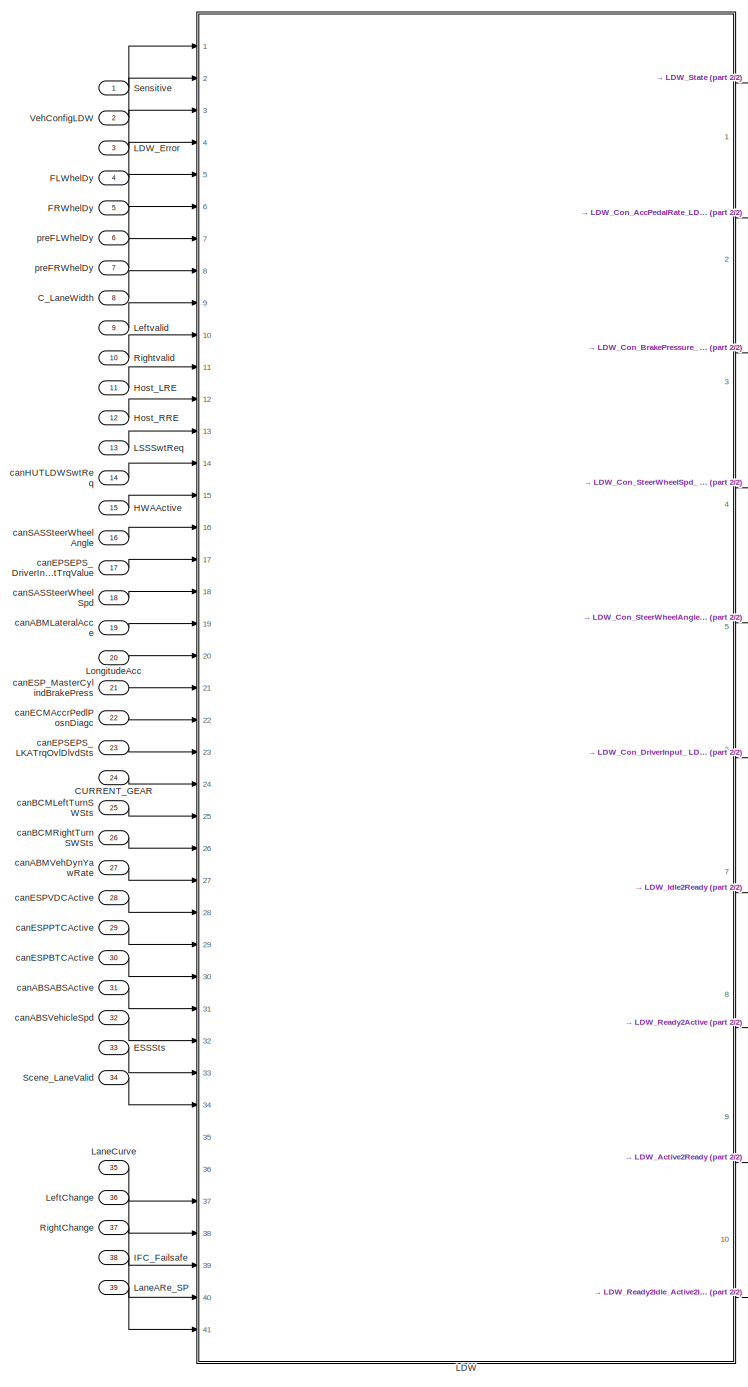
[diagram: root canvas - part 1/2, most of the canvas]
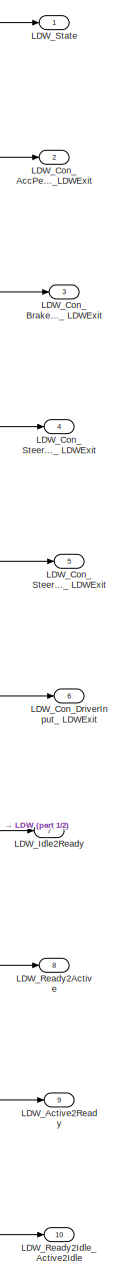
[diagram: root canvas - part 2/2, right side, full height]
MODEL slx_01c1db60d81b
KIND model
CONFIG AbsTol = auto
CONFIG EnableMultiTasking = off
CONFIG FixedStep = auto
CONFIG InitFcn = , if any(exist('dsmpb_private', 'file') ~= 0), dsmpb_private('dsmpb_mdlclblib', 'Init', bdroot); end,\n
CONFIG MaxStep = auto
CONFIG MinStep = auto
CONFIG PostLoadFcn = if any(exist('dsrtsu_mdlpostloadfcn', 'file') ~= 0), dsrtsu_mdlpostloadfcn('Execute', bdroot); end
CONFIG RelTol = 1e-3
CONFIG SampleTimeConstraint = Unconstrained
CONFIG SolverName = FixedStepAuto
CONFIG StartTime = 0.0
CONFIG StopTime = Inf
BLOCK [Inport] CURRENT_GEAR
  OutDataTypeStr = uint8
  Port = 24
BLOCK [Inport] C_LaneWidth
  OutDataTypeStr = single
  Port = 8
BLOCK [Inport] ESSSts
  OutDataTypeStr = uint8
  Port = 33
BLOCK [Inport] FLWhelDy
  OutDataTypeStr = single
  Port = 4
BLOCK [Inport] FRWhelDy
  OutDataTypeStr = single
  Port = 5
BLOCK [Inport] HWAActive
  OutDataTypeStr = boolean
  Port = 15
BLOCK [Inport] Host_LRE
  OutDataTypeStr = boolean
  Port = 11
BLOCK [Inport] Host_RRE
  OutDataTypeStr = boolean
  Port = 12
BLOCK [Inport] IFC_Failsafe
  OutDataTypeStr = double
  Port = 38
BLOCK [SubSystem] LDW
  Ports = [41, 10]
  ReferencedSubsystem = PvtSubSys_VSM_LDW
  RequestExecContextInheritance = off
BLOCK [Outport] LDW_Active2Ready
  Port = 9
BLOCK [Outport] LDW_Con_AccPedalRate_LDWExit
  Port = 2
BLOCK [Outport] LDW_Con_BrakePressure_ LDWExit
  Port = 3
BLOCK [Outport] LDW_Con_DriverInput_ LDWExit
  Port = 6
BLOCK [Outport] LDW_Con_SteerWheelAngle_ LDWExit
  Port = 5
BLOCK [Outport] LDW_Con_SteerWheelSpd_ LDWExit
  Port = 4
BLOCK [Inport] LDW_Error
  OutDataTypeStr = uint8
  Port = 3
BLOCK [Outport] LDW_Idle2Ready
  Port = 7
BLOCK [Outport] LDW_Ready2Active
  Port = 8
BLOCK [Outport] LDW_Ready2Idle_Active2Idle
  Port = 10
BLOCK [Outport] LDW_State
BLOCK [Inport] LSSSwtReq
  OutDataTypeStr = boolean
  Port = 13
BLOCK [Inport] LaneARe_SP
  OutDataTypeStr = Bus: LaneARe_SP_LDW
  Port = 39
BLOCK [Inport] LaneCurve
  OutDataTypeStr = single
  Port = 35
BLOCK [Inport] LeftChange
  OutDataTypeStr = boolean
  Port = 36
BLOCK [Inport] Leftvalid
  OutDataTypeStr = boolean
  Port = 9
BLOCK [Inport] LongitudeAcc
  OutDataTypeStr = single
  Port = 20
BLOCK [Inport] RightChange
  OutDataTypeStr = boolean
  Port = 37
BLOCK [Inport] Rightvalid
  OutDataTypeStr = boolean
  Port = 10
BLOCK [Inport] Scene_LaneValid
  OutDataTypeStr = single
  Port = 34
BLOCK [Inport] Sensitive
  OutDataTypeStr = uint8
BLOCK [Inport] VehConfigLDW
  OutDataTypeStr = uint8
  Port = 2
BLOCK [Inport] canABMLateralAcce
  OutDataTypeStr = single
  Port = 19
BLOCK [Inport] canABMVehDynYawRate
  OutDataTypeStr = single
  Port = 27
BLOCK [Inport] canABSABSActive
  OutDataTypeStr = boolean
  Port = 31
BLOCK [Inport] canABSVehicleSpd
  OutDataTypeStr = single
  Port = 32
BLOCK [Inport] canBCMLeftTurnSWSts
  OutDataTypeStr = boolean
  Port = 25
BLOCK [Inport] canBCMRightTurnSWSts
  OutDataTypeStr = boolean
  Port = 26
BLOCK [Inport] canECMAccrPedlPosnDiagc
  OutDataTypeStr = single
  Port = 22
BLOCK [Inport] canEPSEPS_DriverInputTrqValue
  OutDataTypeStr = single
  Port = 17
BLOCK [Inport] canEPSEPS_LKATrqOvlDlvdSts
  OutDataTypeStr = uint8
  Port = 23
BLOCK [Inport] canESPBTCActive
  OutDataTypeStr = boolean
  Port = 30
BLOCK [Inport] canESPPTCActive
  OutDataTypeStr = boolean
  Port = 29
BLOCK [Inport] canESPVDCActive
  OutDataTypeStr = boolean
  Port = 28
BLOCK [Inport] canESP_MasterCylindBrakePress
  OutDataTypeStr = single
  Port = 21
BLOCK [Inport] canHUTLDWSwtReq
  OutDataTypeStr = boolean
  Port = 14
BLOCK [Inport] canSASSteerWheelAngle
  OutDataTypeStr = single
  Port = 16
BLOCK [Inport] canSASSteerWheelSpd
  OutDataTypeStr = single
  Port = 18
BLOCK [Inport] preFLWhelDy
  OutDataTypeStr = single
  Port = 6
BLOCK [Inport] preFRWhelDy
  OutDataTypeStr = single
  Port = 7
LINE CURRENT_GEAR:1 -> LDW:24
LINE C_LaneWidth:1 -> LDW:8
LINE ESSSts:1 -> LDW:33
LINE FLWhelDy:1 -> LDW:4
LINE FRWhelDy:1 -> LDW:5
LINE HWAActive:1 -> LDW:15
LINE Host_LRE:1 -> LDW:11
LINE Host_RRE:1 -> LDW:12
LINE IFC_Failsafe:1 -> LDW:40
LINE LDW:1 -> LDW_State:1
LINE LDW:10 -> LDW_Ready2Idle_Active2Idle:1
LINE LDW:2 -> LDW_Con_AccPedalRate_LDWExit:1
LINE LDW:3 -> LDW_Con_BrakePressure_ LDWExit:1
LINE LDW:4 -> LDW_Con_SteerWheelSpd_ LDWExit:1
LINE LDW:5 -> LDW_Con_SteerWheelAngle_ LDWExit:1
LINE LDW:6 -> LDW_Con_DriverInput_ LDWExit:1
LINE LDW:7 -> LDW_Idle2Ready:1
LINE LDW:8 -> LDW_Ready2Active:1
LINE LDW:9 -> LDW_Active2Ready:1
LINE LDW_Error:1 -> LDW:3
LINE LSSSwtReq:1 -> LDW:13
LINE LaneARe_SP:1 -> LDW:41
LINE LaneCurve:1 -> LDW:37
LINE LeftChange:1 -> LDW:38
LINE Leftvalid:1 -> LDW:9
LINE LongitudeAcc:1 -> LDW:20
LINE RightChange:1 -> LDW:39
LINE Rightvalid:1 -> LDW:10
LINE Scene_LaneValid:1 -> LDW:34
LINE Sensitive:1 -> LDW:1
LINE VehConfigLDW:1 -> LDW:2
LINE canABMLateralAcce:1 -> LDW:19
LINE canABMVehDynYawRate:1 -> LDW:27
LINE canABSABSActive:1 -> LDW:31
LINE canABSVehicleSpd:1 -> LDW:32
LINE canBCMLeftTurnSWSts:1 -> LDW:25
LINE canBCMRightTurnSWSts:1 -> LDW:26
LINE canECMAccrPedlPosnDiagc:1 -> LDW:22
LINE canEPSEPS_DriverInputTrqValue:1 -> LDW:17
LINE canEPSEPS_LKATrqOvlDlvdSts:1 -> LDW:23
LINE canESPBTCActive:1 -> LDW:30
LINE canESPPTCActive:1 -> LDW:29
LINE canESPVDCActive:1 -> LDW:28
LINE canESP_MasterCylindBrakePress:1 -> LDW:21
LINE canHUTLDWSwtReq:1 -> LDW:14
LINE canSASSteerWheelAngle:1 -> LDW:16
LINE canSASSteerWheelSpd:1 -> LDW:18
LINE preFLWhelDy:1 -> LDW:6
LINE preFRWhelDy:1 -> LDW:7
